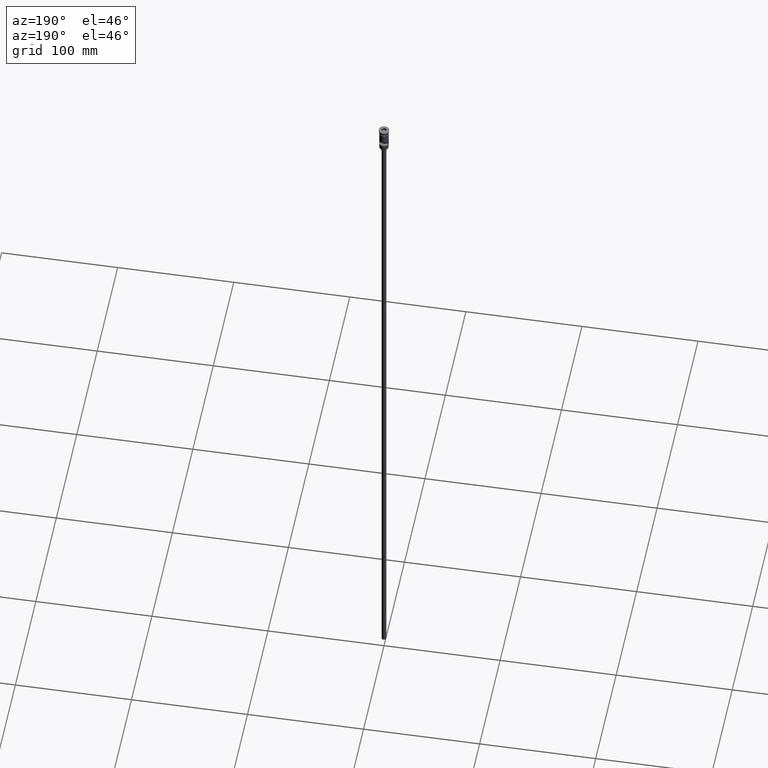
[diagram: clean part render]
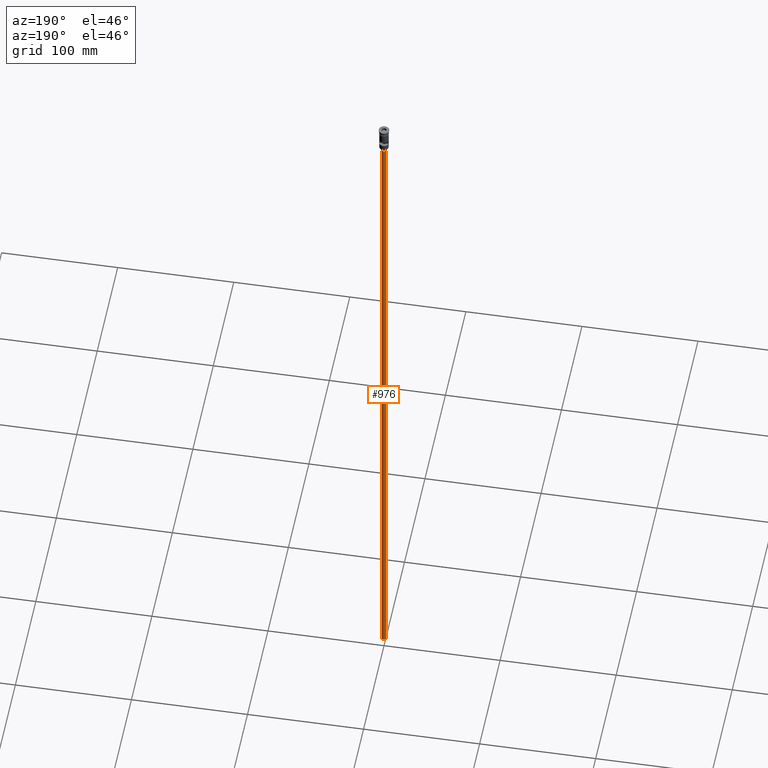
[diagram: same view with one face highlighted and labeled with its STEP entity id]
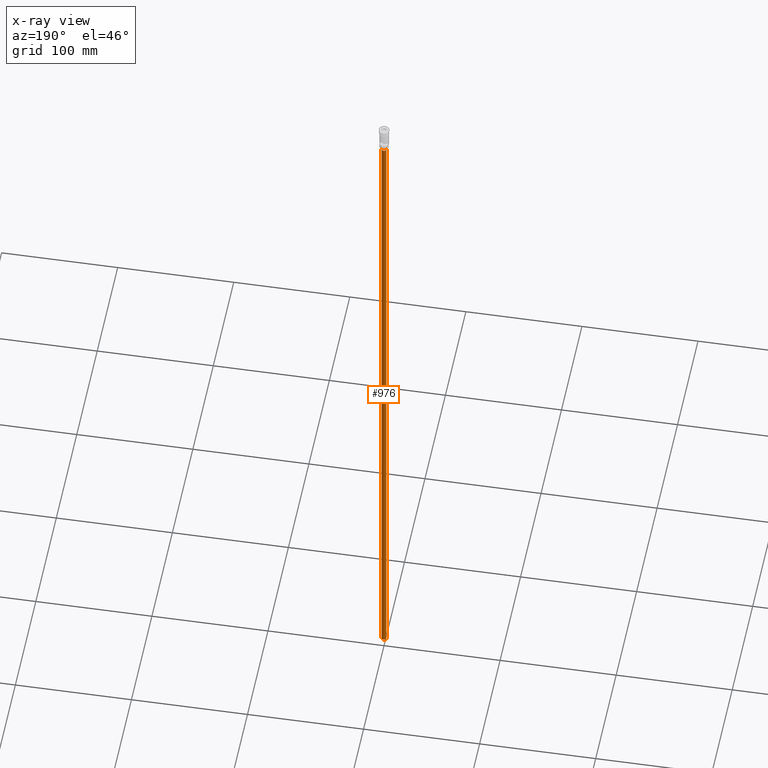
[diagram: x-ray of the same camera — body ghosted, the highlighted face saturated]
A machine part, auxiliary view. The second image highlights one B-rep face of the part: STEP entity #976.
The next image is the same camera in x-ray: the body ghosted, the highlighted face saturated — about 0% of this face is hidden behind the body in this view.
In plain terms, the highlighted cylindrical surface (edge-blend (fillet) strip) has radius 2 mm, axis along (-0, -0, 1).
Its self-contained STEP definition (entity closure, byte-faithful):
#60 = DIRECTION ( 'NONE',  ( -0.000000000000000000, -0.000000000000000000, 1.000000000000000000 ) ) ;
#126 = CARTESIAN_POINT ( 'NONE',  ( -2.000000000000000000, 2.449293598294706414E-16, -23.49999999999999645 ) ) ;
#132 = DIRECTION ( 'NONE',  ( -0.000000000000000000, -0.000000000000000000, 1.000000000000000000 ) ) ;
#142 = EDGE_CURVE ( 'NONE', #1125, #1257, #872, .T. ) ;
#166 = DIRECTION ( 'NONE',  ( -1.000000000000000000, 0.000000000000000000, 0.000000000000000000 ) ) ;
#181 = LINE ( 'NONE', #1175, #1102 ) ;
#213 = AXIS2_PLACEMENT_3D ( 'NONE', #1302, #1414, #1292 ) ;
#253 = CARTESIAN_POINT ( 'NONE',  ( 2.000000000000000000, 0.000000000000000000, -620.4999999999998863 ) ) ;
#298 = DIRECTION ( 'NONE',  ( 1.000000000000000000, 0.000000000000000000, 0.000000000000000000 ) ) ;
#431 = EDGE_CURVE ( 'NONE', #930, #858, #181, .T. ) ;
#510 = FACE_OUTER_BOUND ( 'NONE', #1402, .T. ) ;
#530 = CARTESIAN_POINT ( 'NONE',  ( 0.000000000000000000, 0.000000000000000000, -620.4999999999998863 ) ) ;
#563 = CARTESIAN_POINT ( 'NONE',  ( 2.000000000000000000, 0.000000000000000000, -620.4999999999998863 ) ) ;
#589 = ORIENTED_EDGE ( 'NONE', *, *, #431, .T. ) ;
#626 = CIRCLE ( 'NONE', #758, 2.000000000000000000 ) ;
#661 = ORIENTED_EDGE ( 'NONE', *, *, #833, .T. ) ;
#747 = DIRECTION ( 'NONE',  ( -0.000000000000000000, -0.000000000000000000, 1.000000000000000000 ) ) ;
#750 = CYLINDRICAL_SURFACE ( 'NONE', #1306, 2.000000000000000000 ) ;
#758 = AXIS2_PLACEMENT_3D ( 'NONE', #530, #1393, #166 ) ;
#766 = ORIENTED_EDGE ( 'NONE', *, *, #1323, .F. ) ;
#833 = EDGE_CURVE ( 'NONE', #858, #1257, #1337, .T. ) ;
#858 = VERTEX_POINT ( 'NONE', #126 ) ;
#872 = LINE ( 'NONE', #253, #1040 ) ;
#905 = ORIENTED_EDGE ( 'NONE', *, *, #142, .F. ) ;
#930 = VERTEX_POINT ( 'NONE', #993 ) ;
#976 = ADVANCED_FACE ( 'NONE', ( #510 ), #750, .T. ) ;
#993 = CARTESIAN_POINT ( 'NONE',  ( -2.000000000000000000, 2.449293598294706414E-16, -620.4999999999998863 ) ) ;
#1040 = VECTOR ( 'NONE', #747, 1000.000000000000000 ) ;
#1102 = VECTOR ( 'NONE', #60, 1000.000000000000000 ) ;
#1125 = VERTEX_POINT ( 'NONE', #563 ) ;
#1175 = CARTESIAN_POINT ( 'NONE',  ( -2.000000000000000000, 2.449293598294706414E-16, -620.4999999999998863 ) ) ;
#1185 = CARTESIAN_POINT ( 'NONE',  ( 2.000000000000000000, 0.000000000000000000, -23.49999999999999645 ) ) ;
#1246 = CARTESIAN_POINT ( 'NONE',  ( 0.000000000000000000, 0.000000000000000000, -620.4999999999998863 ) ) ;
#1257 = VERTEX_POINT ( 'NONE', #1185 ) ;
#1292 = DIRECTION ( 'NONE',  ( -1.000000000000000000, 0.000000000000000000, 0.000000000000000000 ) ) ;
#1302 = CARTESIAN_POINT ( 'NONE',  ( 0.000000000000000000, 0.000000000000000000, -23.49999999999999645 ) ) ;
#1306 = AXIS2_PLACEMENT_3D ( 'NONE', #1246, #132, #298 ) ;
#1323 = EDGE_CURVE ( 'NONE', #930, #1125, #626, .T. ) ;
#1337 = CIRCLE ( 'NONE', #213, 2.000000000000000000 ) ;
#1393 = DIRECTION ( 'NONE',  ( 0.000000000000000000, 0.000000000000000000, -1.000000000000000000 ) ) ;
#1402 = EDGE_LOOP ( 'NONE', ( #766, #589, #661, #905 ) ) ;
#1414 = DIRECTION ( 'NONE',  ( 0.000000000000000000, 0.000000000000000000, -1.000000000000000000 ) ) ;